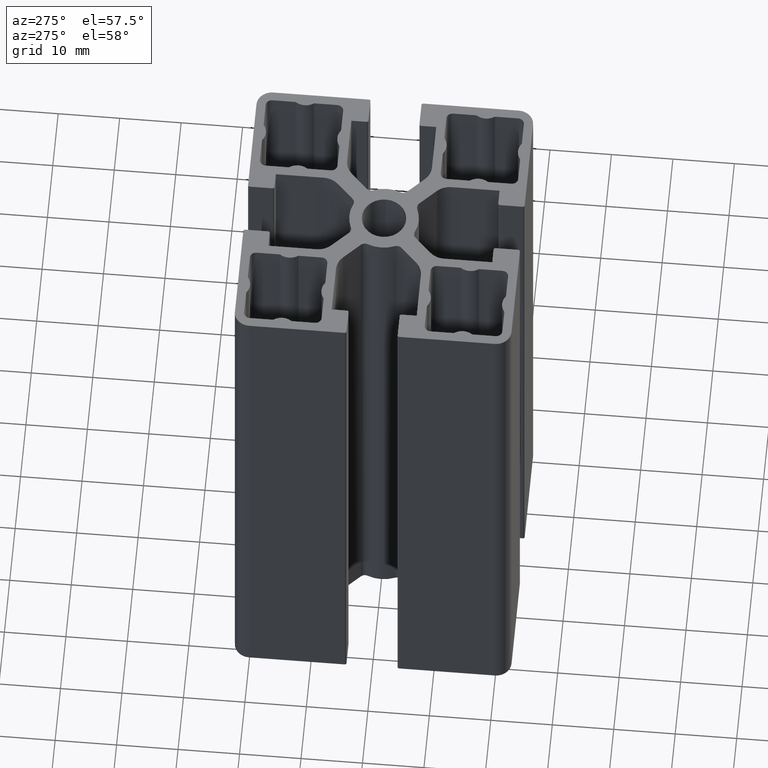
[diagram: clean part render]
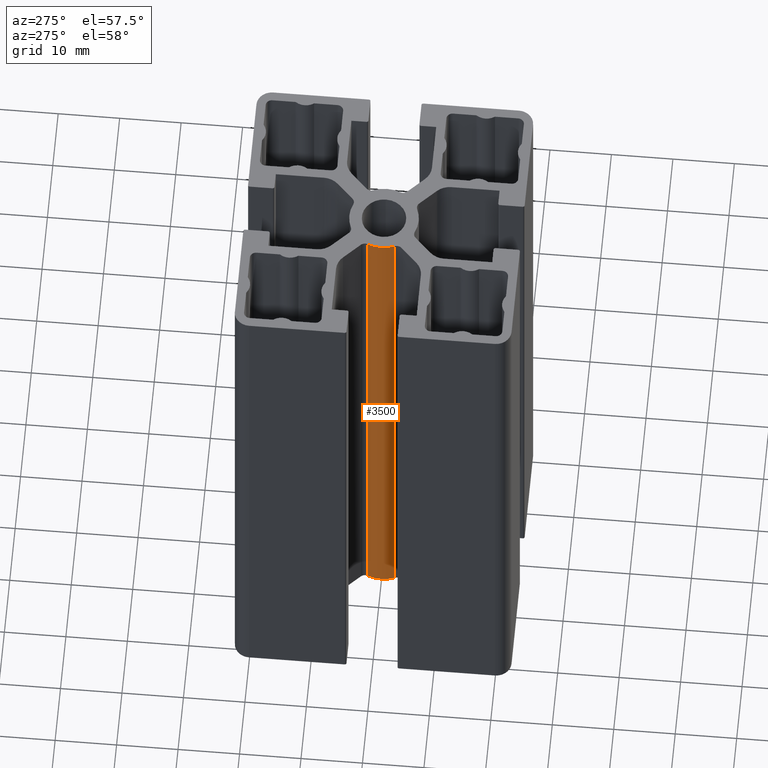
[diagram: same view with one face highlighted and labeled with its STEP entity id]
A machine part, auxiliary view. The second image highlights one B-rep face of the part: STEP entity #3500.
In plain terms, the highlighted cylindrical surface (edge-blend (fillet) strip) has radius 5.65 mm, axis along (0, 0, 1).
Its self-contained STEP definition (entity closure, byte-faithful):
#186=CIRCLE('',#3842,5.65);
#187=CIRCLE('',#3843,5.65);
#316=CYLINDRICAL_SURFACE('',#3841,5.65);
#473=FACE_OUTER_BOUND('',#653,.T.);
#653=EDGE_LOOP('',(#2760,#2761,#2762,#2763));
#948=LINE('',#5841,#1268);
#949=LINE('',#5847,#1269);
#1268=VECTOR('',#4762,100.);
#1269=VECTOR('',#4769,100.);
#1620=VERTEX_POINT('',#5837);
#1621=VERTEX_POINT('',#5839);
#1622=VERTEX_POINT('',#5843);
#1623=VERTEX_POINT('',#5845);
#2102=EDGE_CURVE('',#1621,#1620,#948,.T.);
#2103=EDGE_CURVE('',#1620,#1622,#186,.T.);
#2104=EDGE_CURVE('',#1623,#1621,#187,.T.);
#2105=EDGE_CURVE('',#1623,#1622,#949,.T.);
#2760=ORIENTED_EDGE('',*,*,#2103,.F.);
#2761=ORIENTED_EDGE('',*,*,#2102,.F.);
#2762=ORIENTED_EDGE('',*,*,#2104,.F.);
#2763=ORIENTED_EDGE('',*,*,#2105,.T.);
#3500=ADVANCED_FACE('',(#473),#316,.T.);
#3841=AXIS2_PLACEMENT_3D('',#5842,#4763,#4764);
#3842=AXIS2_PLACEMENT_3D('',#5844,#4765,#4766);
#3843=AXIS2_PLACEMENT_3D('',#5846,#4767,#4768);
#4762=DIRECTION('',(0.,0.,1.));
#4763=DIRECTION('center_axis',(0.,0.,1.));
#4764=DIRECTION('ref_axis',(0.921065921485518,-0.389406687510672,0.));
#4765=DIRECTION('center_axis',(0.,0.,1.));
#4766=DIRECTION('ref_axis',(0.921065921485518,-0.389406687510672,0.));
#4767=DIRECTION('center_axis',(0.,0.,-1.));
#4768=DIRECTION('ref_axis',(0.921065921485518,-0.389406687510672,0.));
#4769=DIRECTION('',(0.,0.,1.));
#5837=CARTESIAN_POINT('',(-5.20402245639318,2.2001477844353,100.));
#5839=CARTESIAN_POINT('',(-5.20402245639318,2.2001477844353,0.));
#5841=CARTESIAN_POINT('',(-5.20402245639318,2.2001477844353,0.));
#5842=CARTESIAN_POINT('Origin',(1.77635683940025E-15,7.85766239548996E-16,
0.));
#5843=CARTESIAN_POINT('',(-5.20402245639318,-2.20014778443529,100.));
#5844=CARTESIAN_POINT('Origin',(1.77635683940025E-15,7.85766239548996E-16,
100.));
#5845=CARTESIAN_POINT('',(-5.20402245639318,-2.20014778443529,0.));
#5846=CARTESIAN_POINT('Origin',(1.77635683940025E-15,7.85766239548996E-16,
0.));
#5847=CARTESIAN_POINT('',(-5.20402245639318,-2.20014778443529,0.));